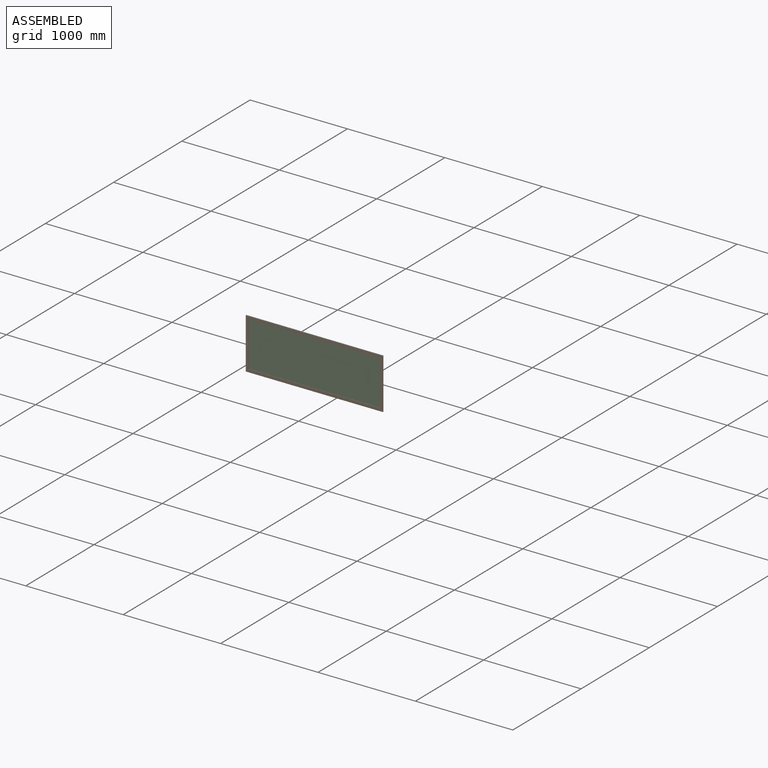
[diagram: assembled view]
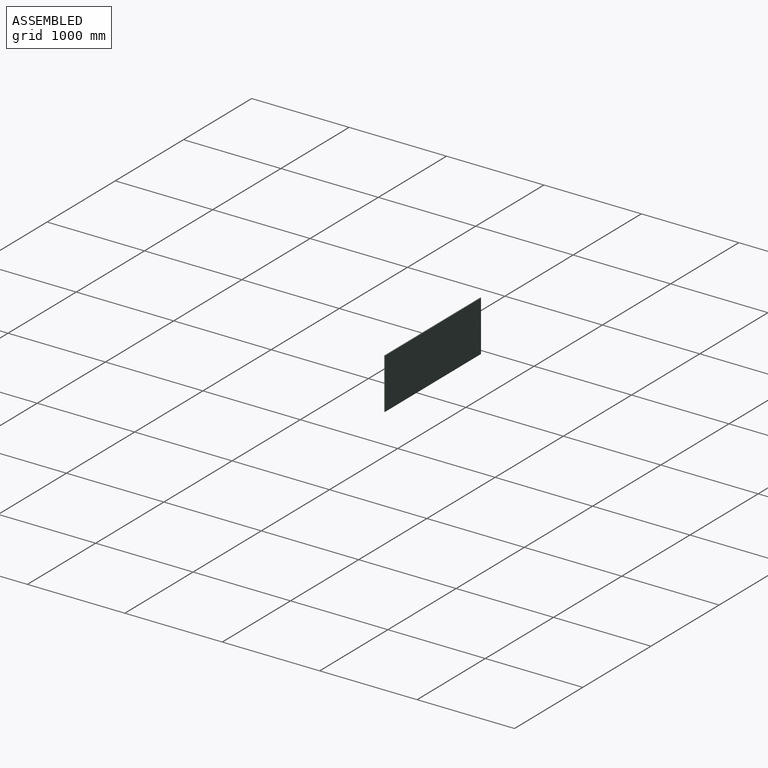
[diagram: assembled view, second angle]
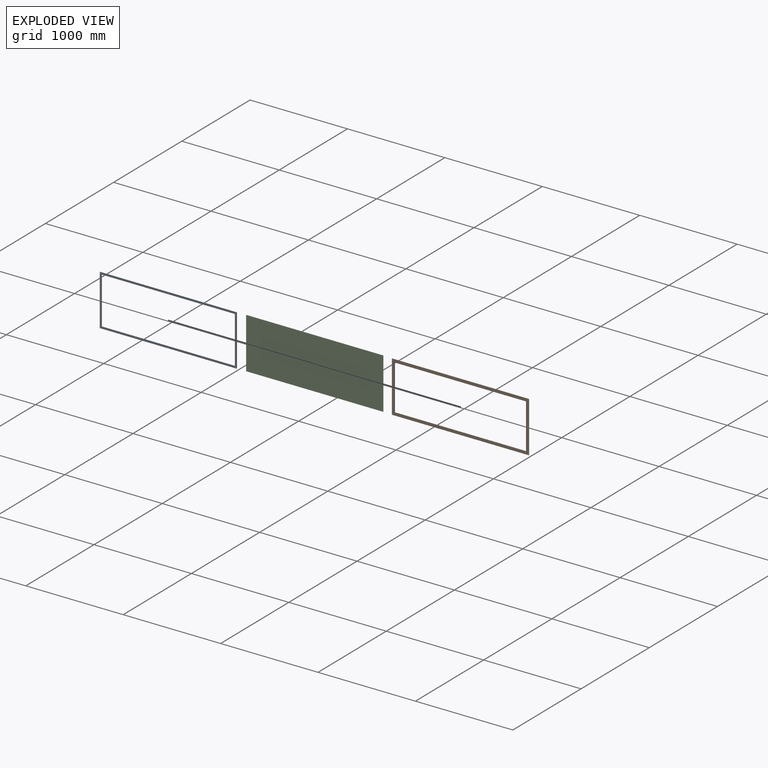
[diagram: exploded view]
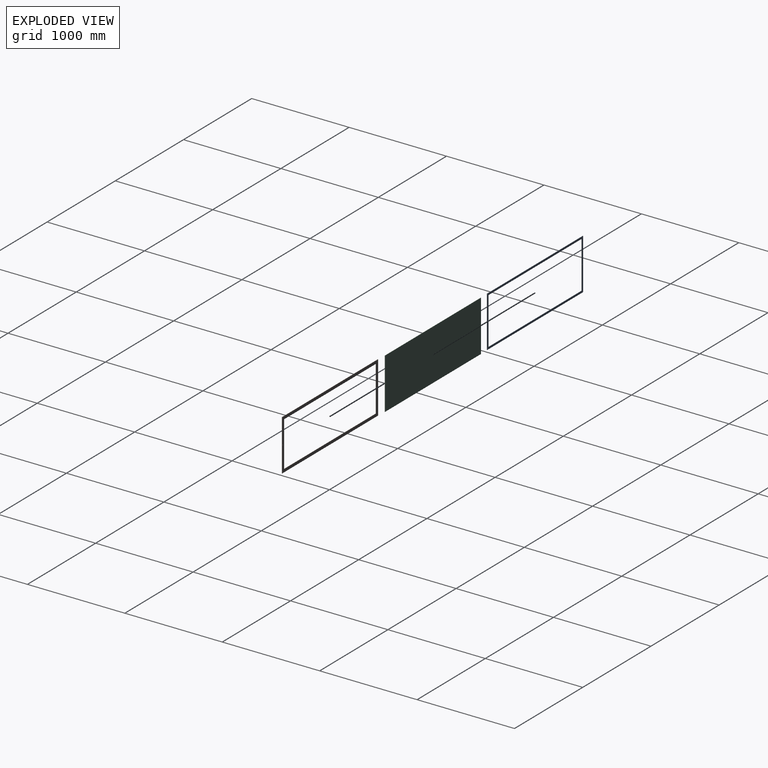
[diagram: exploded view, second angle]
ASSEMBLY  parts=3 mates=6
PART A: 22 faces, bbox 1407x3x522 mm
  f0: plane 1407x3mm, normal (0,0,-1), area 4221mm2, adj f1,f3,f4,f5
  f1: plane 522x3mm, normal (1,0,0), area 1566mm2, adj f0,f2,f4,f5
  f2: plane 1407x3mm, normal (0,0,1), area 4221mm2, adj f1,f3,f4,f5
  f3: plane 522x3mm, normal (-1,0,0), area 1566mm2, adj f0,f2,f4,f5
  f4: plane 1407x522mm, normal (0,-1,0), area 75324.4mm2, adj f0,f1,f2,f3,f6,f7,f8,f9
  f5: plane 1407x522mm, normal (0,1,0), area 75324.4mm2, adj f0,f1,f2,f3,f6,f7,f8,f9
  f6: cylinder r=2.5mm len=5mm, axis (0,-1,0), area 47.1mm2, adj f4,f5
  f7: cylinder r=2.5mm len=5mm, axis (0,-1,0), area 47.1mm2, adj f4,f5
  f8: cylinder r=2.5mm len=5mm, axis (0,-1,0), area 47.1mm2, adj f4,f5
  f9: cylinder r=2.5mm len=5mm, axis (0,-1,0), area 47.1mm2, adj f4,f5
  f10: cylinder r=2.5mm len=5mm, axis (0,-1,0), area 47.1mm2, adj f4,f5
  f11: cylinder r=2.5mm len=5mm, axis (0,-1,0), area 47.1mm2, adj f4,f5
  f12: cylinder r=2.5mm len=5mm, axis (0,-1,0), area 47.1mm2, adj f4,f5
  f13: cylinder r=2.5mm len=5mm, axis (0,-1,0), area 47.1mm2, adj f4,f5
  f14: cylinder r=2.5mm len=5mm, axis (0,-1,0), area 47.1mm2, adj f4,f5
  f15: cylinder r=2.5mm len=5mm, axis (0,-1,0), area 47.1mm2, adj f4,f5
  f16: cylinder r=2.5mm len=5mm, axis (0,-1,0), area 47.1mm2, adj f4,f5
  f17: cylinder r=2.5mm len=5mm, axis (0,-1,0), area 47.1mm2, adj f4,f5
  f18: plane 482x3mm, normal (-1,0,0), area 1446mm2, adj f4,f5,f19,f21
  f19: plane 1367x3mm, normal (0,0,-1), area 4101mm2, adj f4,f5,f18,f20
  f20: plane 482x3mm, normal (1,0,0), area 1446mm2, adj f4,f5,f19,f21
  f21: plane 1367x3mm, normal (0,0,1), area 4101mm2, adj f4,f5,f18,f20
PART B: 22 faces, bbox 1407x3x522 mm
  f0: plane 1407x3mm, normal (0,0,-1), area 4221mm2, adj f1,f3,f4,f5
  f1: plane 522x3mm, normal (1,0,0), area 1566mm2, adj f0,f2,f4,f5
  f2: plane 1407x3mm, normal (0,0,1), area 4221mm2, adj f1,f3,f4,f5
  f3: plane 522x3mm, normal (-1,0,0), area 1566mm2, adj f0,f2,f4,f5
  f4: plane 1407x522mm, normal (0,-1,0), area 111904.4mm2, adj f0,f1,f2,f3,f6,f7,f8,f9
  f5: plane 1407x522mm, normal (0,1,0), area 111904.4mm2, adj f0,f1,f2,f3,f6,f7,f8,f9
  f6: cylinder r=2.5mm len=5mm, axis (0,-1,0), area 47.1mm2, adj f4,f5
  f7: cylinder r=2.5mm len=5mm, axis (0,-1,0), area 47.1mm2, adj f4,f5
  f8: cylinder r=2.5mm len=5mm, axis (0,-1,0), area 47.1mm2, adj f4,f5
  f9: cylinder r=2.5mm len=5mm, axis (0,-1,0), area 47.1mm2, adj f4,f5
  f10: cylinder r=2.5mm len=5mm, axis (0,-1,0), area 47.1mm2, adj f4,f5
  f11: cylinder r=2.5mm len=5mm, axis (0,-1,0), area 47.1mm2, adj f4,f5
  f12: cylinder r=2.5mm len=5mm, axis (0,-1,0), area 47.1mm2, adj f4,f5
  f13: cylinder r=2.5mm len=5mm, axis (0,-1,0), area 47.1mm2, adj f4,f5
  f14: cylinder r=2.5mm len=5mm, axis (0,-1,0), area 47.1mm2, adj f4,f5
  f15: cylinder r=2.5mm len=5mm, axis (0,-1,0), area 47.1mm2, adj f4,f5
  f16: cylinder r=2.5mm len=5mm, axis (0,-1,0), area 47.1mm2, adj f4,f5
  f17: cylinder r=2.5mm len=5mm, axis (0,-1,0), area 47.1mm2, adj f4,f5
  f18: plane 462x3mm, normal (-1,0,0), area 1386mm2, adj f4,f5,f19,f21
  f19: plane 1347x3mm, normal (0,0,-1), area 4041mm2, adj f4,f5,f18,f20
  f20: plane 462x3mm, normal (1,0,0), area 1386mm2, adj f4,f5,f19,f21
  f21: plane 1347x3mm, normal (0,0,1), area 4041mm2, adj f4,f5,f18,f20
PART C: 18 faces, bbox 1407x3x522 mm
  f0: plane 1407x3mm, normal (0,0,-1), area 4221mm2, adj f1,f3,f4,f5
  f1: plane 522x3mm, normal (1,0,0), area 1566mm2, adj f0,f2,f4,f5
  f2: plane 1407x3mm, normal (0,0,1), area 4221mm2, adj f1,f3,f4,f5
  f3: plane 522x3mm, normal (-1,0,0), area 1566mm2, adj f0,f2,f4,f5
  f4: plane 1407x522mm, normal (0,-1,0), area 734303.2mm2, adj f0,f1,f2,f3,f6,f7,f8,f9
  f5: plane 1407x522mm, normal (0,1,0), area 734303.2mm2, adj f0,f1,f2,f3,f6,f7,f8,f9
  f6: cylinder r=2mm len=4mm, axis (0,-1,0), area 37.7mm2, adj f4,f5
  f7: cylinder r=2mm len=4mm, axis (0,-1,0), area 37.7mm2, adj f4,f5
  f8: cylinder r=2mm len=4mm, axis (0,-1,0), area 37.7mm2, adj f4,f5
  f9: cylinder r=2mm len=4mm, axis (0,-1,0), area 37.7mm2, adj f4,f5
  f10: cylinder r=2mm len=4mm, axis (0,-1,0), area 37.7mm2, adj f4,f5
  f11: cylinder r=2mm len=4mm, axis (0,-1,0), area 37.7mm2, adj f4,f5
  f12: cylinder r=2mm len=4mm, axis (0,-1,0), area 37.7mm2, adj f4,f5
  f13: cylinder r=2mm len=4mm, axis (0,-1,0), area 37.7mm2, adj f4,f5
  f14: cylinder r=2mm len=4mm, axis (0,-1,0), area 37.7mm2, adj f4,f5
  f15: cylinder r=2mm len=4mm, axis (0,-1,0), area 37.7mm2, adj f4,f5
  f16: cylinder r=2mm len=4mm, axis (0,-1,0), area 37.7mm2, adj f4,f5
  f17: cylinder r=2mm len=4mm, axis (0,-1,0), area 37.7mm2, adj f4,f5
PLACE A t=(-199.62,-479.59,-521.07)mm
PLACE B t=(-199.62,-482.59,-521.07)mm
PLACE C t=(-199.62,-476.59,-521.07)mm
MATE planar A.f1 <-> B.f1  axis (1,0,0) through (503.88,-481.09,-521.07)mm
MATE planar A.f4 <-> B.f5  axis (0,-1,0) through (-199.62,-482.59,-521.07)mm
MATE planar B.f2 <-> A.f2  axis (0,0,1) through (-199.62,-484.09,-260.07)mm
MATE planar A.f1 <-> C.f1  axis (1,0,0) through (503.88,-481.09,-260.07)mm
MATE planar C.f4 <-> A.f5  axis (0,-1,0) through (-199.62,-479.59,-521.07)mm
MATE planar A.f2 <-> C.f2  axis (0,0,1) through (-199.62,-481.09,-260.07)mm
